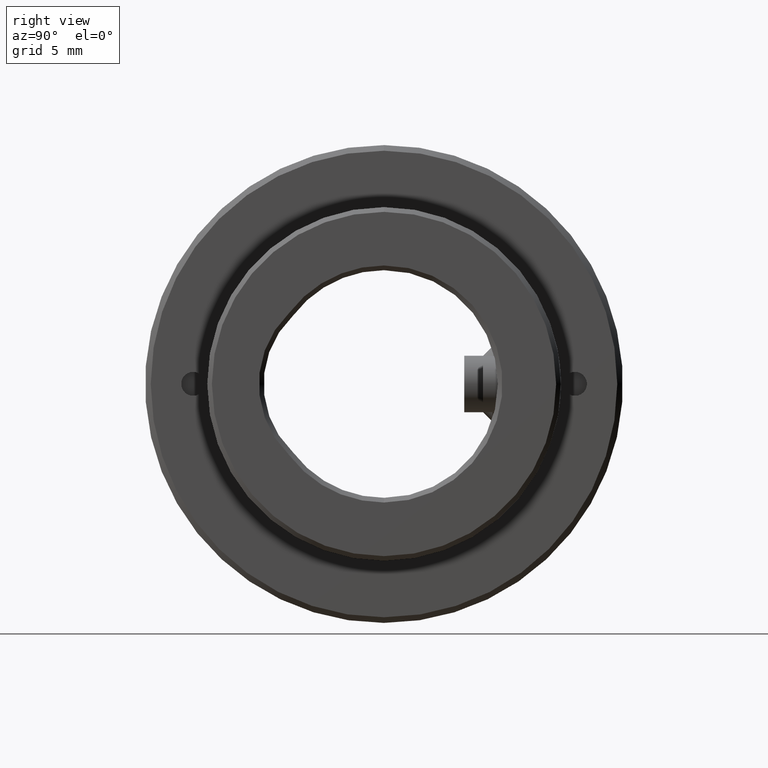
[diagram: clean part render]
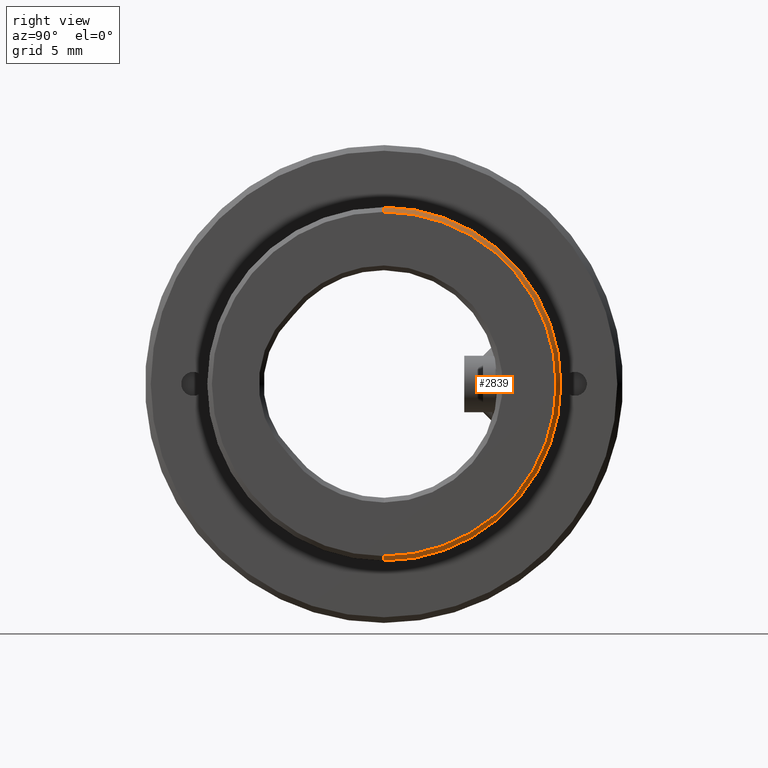
[diagram: same view with one face highlighted and labeled with its STEP entity id]
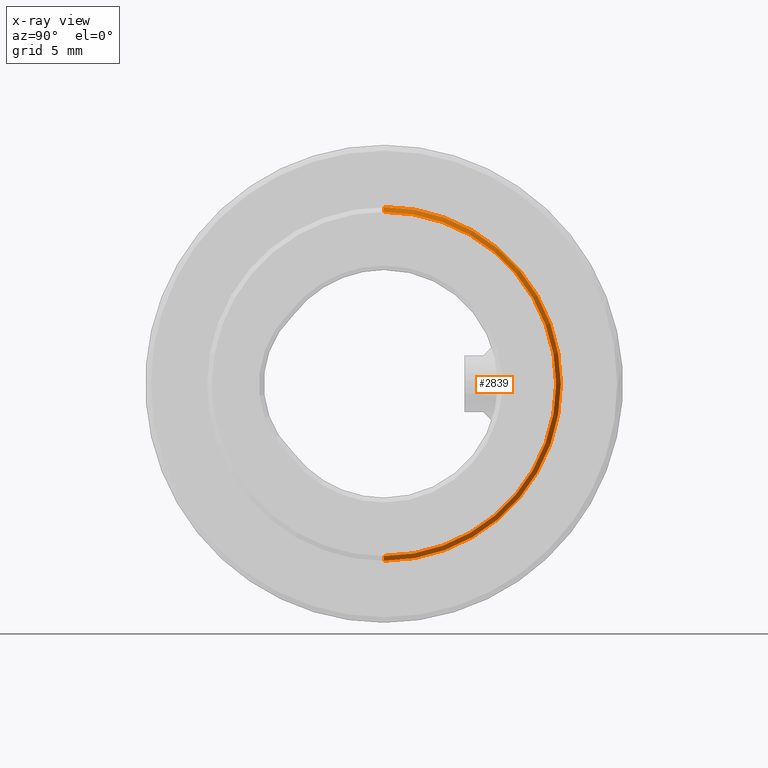
[diagram: x-ray of the same camera — body ghosted, the highlighted face saturated]
A machine part, right view. The second image highlights one B-rep face of the part: STEP entity #2839.
The next image is the same camera in x-ray: the body ghosted, the highlighted face saturated — about 0% of this face is hidden behind the body in this view.
In plain terms, the highlighted conical surface has half-angle 45 deg.
Its self-contained STEP definition (entity closure, byte-faithful):
#495 = EDGE_LOOP ( 'NONE', ( #4468, #1645, #2691, #2382 ) ) ;
#534 = DIRECTION ( 'NONE',  ( -1.000000000000000000, 0.000000000000000000, 0.000000000000000000 ) ) ;
#592 = DIRECTION ( 'NONE',  ( -0.7071067811865500152, 8.659560562354903276E-17, -0.7071067811865451302 ) ) ;
#831 = CONICAL_SURFACE ( 'NONE', #1651, 9.150000000000002132, 0.7853981633974447263 ) ;
#837 = CARTESIAN_POINT ( 'NONE',  ( 15.00000000000000000, 0.000000000000000000, 9.150000000000002132 ) ) ;
#925 = CARTESIAN_POINT ( 'NONE',  ( 15.00000000000000000, 0.000000000000000000, 0.000000000000000000 ) ) ;
#1424 = DIRECTION ( 'NONE',  ( 0.000000000000000000, 0.000000000000000000, -1.000000000000000000 ) ) ;
#1531 = CIRCLE ( 'NONE', #4951, 9.400000000000000355 ) ;
#1645 = ORIENTED_EDGE ( 'NONE', *, *, #3787, .T. ) ;
#1651 = AXIS2_PLACEMENT_3D ( 'NONE', #925, #534, #2095 ) ;
#1739 = CARTESIAN_POINT ( 'NONE',  ( 15.00000000000000000, 0.000000000000000000, 9.150000000000002132 ) ) ;
#1910 = DIRECTION ( 'NONE',  ( -1.000000000000000000, 0.000000000000000000, 0.000000000000000000 ) ) ;
#2095 = DIRECTION ( 'NONE',  ( 0.000000000000000000, 0.000000000000000000, 1.000000000000000000 ) ) ;
#2341 = CARTESIAN_POINT ( 'NONE',  ( 14.75000000000000000, 0.000000000000000000, 0.000000000000000000 ) ) ;
#2382 = ORIENTED_EDGE ( 'NONE', *, *, #4411, .F. ) ;
#2592 = LINE ( 'NONE', #2619, #3707 ) ;
#2619 = CARTESIAN_POINT ( 'NONE',  ( 15.00000000000000000, 1.120551821219828341E-15, -9.150000000000002132 ) ) ;
#2633 = CARTESIAN_POINT ( 'NONE',  ( 14.75000000000000000, 1.151167991198511931E-15, 9.400000000000000355 ) ) ;
#2661 = EDGE_CURVE ( 'NONE', #4094, #3724, #4576, .T. ) ;
#2691 = ORIENTED_EDGE ( 'NONE', *, *, #3568, .F. ) ;
#2839 = ADVANCED_FACE ( 'NONE', ( #2864 ), #831, .T. ) ;
#2844 = VECTOR ( 'NONE', #3226, 1000.000000000000114 ) ;
#2864 = FACE_OUTER_BOUND ( 'NONE', #495, .T. ) ;
#3226 = DIRECTION ( 'NONE',  ( -0.7071067811865500152, 0.000000000000000000, 0.7071067811865451302 ) ) ;
#3462 = DIRECTION ( 'NONE',  ( 0.000000000000000000, 0.000000000000000000, -1.000000000000000000 ) ) ;
#3487 = CARTESIAN_POINT ( 'NONE',  ( 14.75000000000000000, 0.000000000000000000, -9.400000000000000355 ) ) ;
#3568 = EDGE_CURVE ( 'NONE', #4903, #3641, #1531, .T. ) ;
#3641 = VERTEX_POINT ( 'NONE', #3487 ) ;
#3707 = VECTOR ( 'NONE', #592, 1000.000000000000114 ) ;
#3724 = VERTEX_POINT ( 'NONE', #837 ) ;
#3787 = EDGE_CURVE ( 'NONE', #4094, #3641, #2592, .T. ) ;
#4094 = VERTEX_POINT ( 'NONE', #4325 ) ;
#4325 = CARTESIAN_POINT ( 'NONE',  ( 15.00000000000000000, 1.135859906209170037E-15, -9.150000000000002132 ) ) ;
#4411 = EDGE_CURVE ( 'NONE', #3724, #4903, #4784, .T. ) ;
#4468 = ORIENTED_EDGE ( 'NONE', *, *, #2661, .F. ) ;
#4503 = DIRECTION ( 'NONE',  ( 1.000000000000000000, 0.000000000000000000, 0.000000000000000000 ) ) ;
#4576 = CIRCLE ( 'NONE', #4996, 9.150000000000002132 ) ;
#4784 = LINE ( 'NONE', #1739, #2844 ) ;
#4842 = CARTESIAN_POINT ( 'NONE',  ( 15.00000000000000000, 0.000000000000000000, 0.000000000000000000 ) ) ;
#4903 = VERTEX_POINT ( 'NONE', #2633 ) ;
#4951 = AXIS2_PLACEMENT_3D ( 'NONE', #2341, #1910, #3462 ) ;
#4996 = AXIS2_PLACEMENT_3D ( 'NONE', #4842, #4503, #1424 ) ;